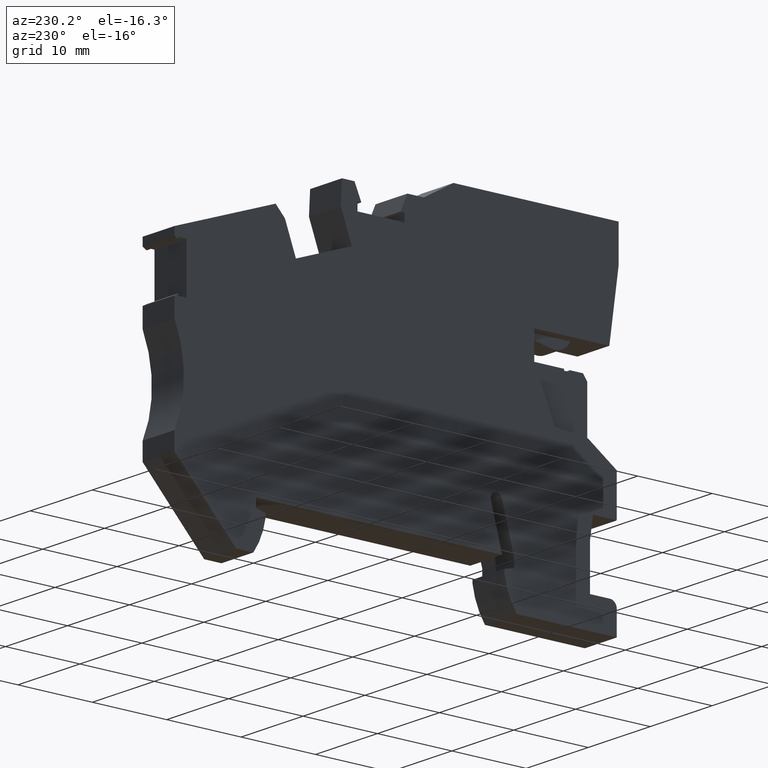
[diagram: clean part render]
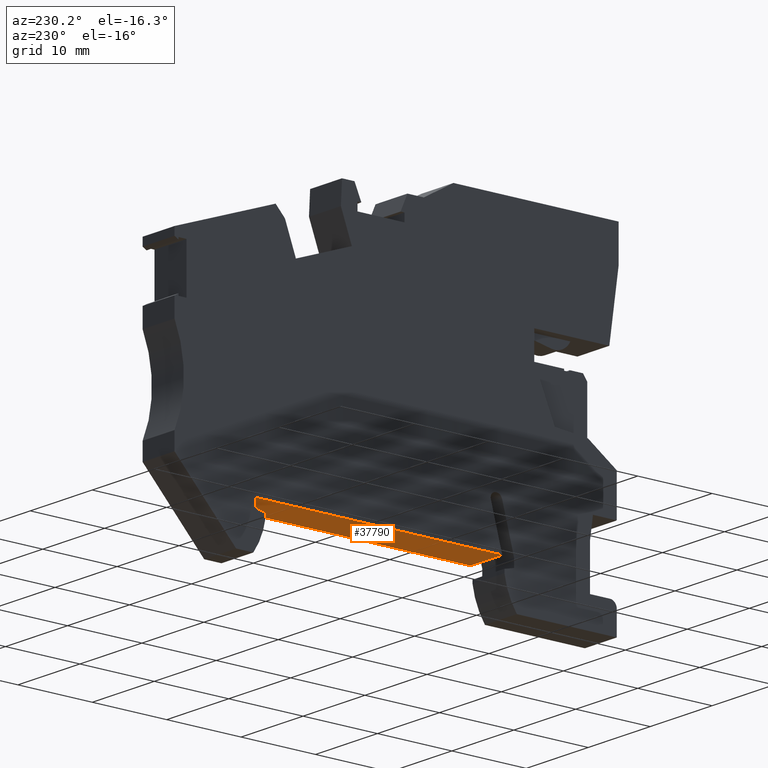
[diagram: same view with one face highlighted and labeled with its STEP entity id]
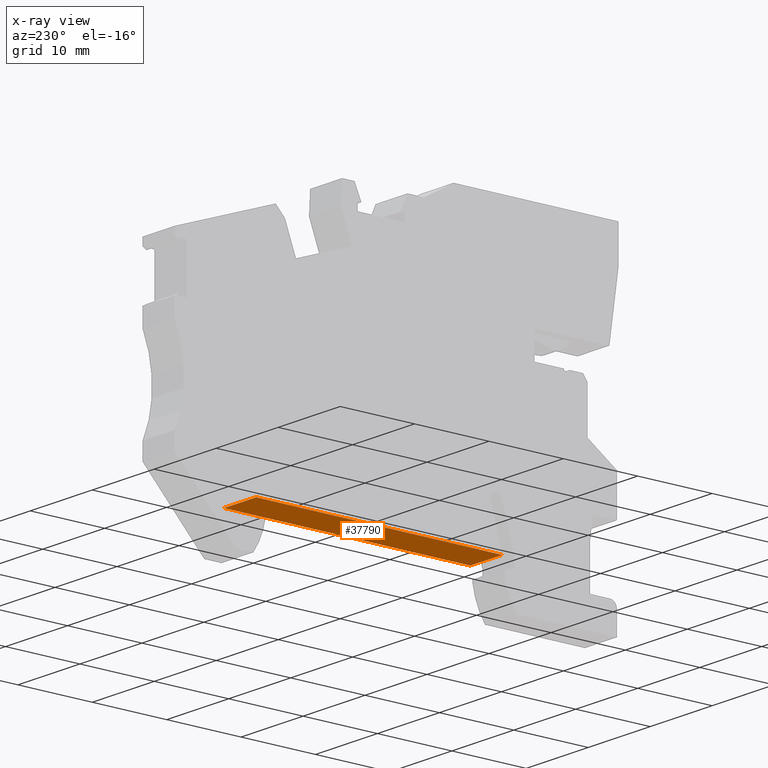
[diagram: x-ray of the same camera — body ghosted, the highlighted face saturated]
A machine part, auxiliary view. The second image highlights one B-rep face of the part: STEP entity #37790.
The next image is the same camera in x-ray: the body ghosted, the highlighted face saturated — about 0% of this face is hidden behind the body in this view.
In plain terms, the highlighted planar face has unit normal (-0, -0, 1).
Its self-contained STEP definition (entity closure, byte-faithful):
#530=CARTESIAN_POINT('',(53.0212625509141,6.34109222925396,
-1.4121310698556E-7));
#540=VERTEX_POINT('',#530);
#570=CARTESIAN_POINT('',(-2.83984678484117E-5,-0.169103698471897,
-1.4121310698556E-7));
#580=DIRECTION('',(-0.992546151641326,-0.121869343405112,
-1.61558713389263E-27));
#590=VECTOR('',#580,1.);
#600=LINE('',#570,#590);
#610=CARTESIAN_POINT('',(20.1679849315951,2.30721696254584,
-1.4121310698556E-7));
#620=VERTEX_POINT('',#610);
#630=EDGE_CURVE('',#540,#620,#600,.T.);
#9760=CARTESIAN_POINT('',(20.1679849315951,2.30721696254584,
-5.15000014116854));
#9770=VERTEX_POINT('',#9760);
#9800=CARTESIAN_POINT('',(-2.83984678484117E-5,-0.169103698471897,
-5.15000014121311));
#9810=DIRECTION('',(-0.992546151641326,-0.121869343405112,
-1.61558713389263E-27));
#9820=VECTOR('',#9810,1.);
#9830=LINE('',#9800,#9820);
#9840=CARTESIAN_POINT('',(53.0212625509141,6.34109222925396,
-5.15000014116736));
#9850=VERTEX_POINT('',#9840);
#9860=EDGE_CURVE('',#9850,#9770,#9830,.T.);
#36010=CARTESIAN_POINT('',(20.1679849315951,2.30721696254584,
-5.15000014121311));
#36020=DIRECTION('',(1.47043672733197E-27,1.29373188456246E-27,-1.));
#36030=VECTOR('',#36020,1.);
#36040=LINE('',#36010,#36030);
#36050=EDGE_CURVE('',#620,#9770,#36040,.T.);
#37630=CARTESIAN_POINT('',(20.8147405958639,2.38662857279453,
-5.15000014121311));
#37640=DIRECTION('',(-0.121869343405112,0.992546151641326,
1.10488744479944E-27));
#37650=DIRECTION('',(-0.992546151641326,-0.121869343405112,
-1.61558713389263E-27));
#37660=AXIS2_PLACEMENT_3D('',#37630,#37640,#37650);
#37670=PLANE('',#37660);
#37680=ORIENTED_EDGE('',*,*,#9860,.F.);
#37690=ORIENTED_EDGE('',*,*,#36050,.T.);
#37700=ORIENTED_EDGE('',*,*,#630,.T.);
#37710=CARTESIAN_POINT('',(53.0212625509144,6.34109222925123,
-5.15000014121311));
#37720=DIRECTION('',(-1.47043672733197E-27,-1.29373188456246E-27,1.));
#37730=VECTOR('',#37720,1.);
#37740=LINE('',#37710,#37730);
#37750=EDGE_CURVE('',#9850,#540,#37740,.T.);
#37760=ORIENTED_EDGE('',*,*,#37750,.T.);
#37770=EDGE_LOOP('',(#37760,#37700,#37690,#37680));
#37780=FACE_OUTER_BOUND('',#37770,.T.);
#37790=ADVANCED_FACE('',(#37780),#37670,.F.);